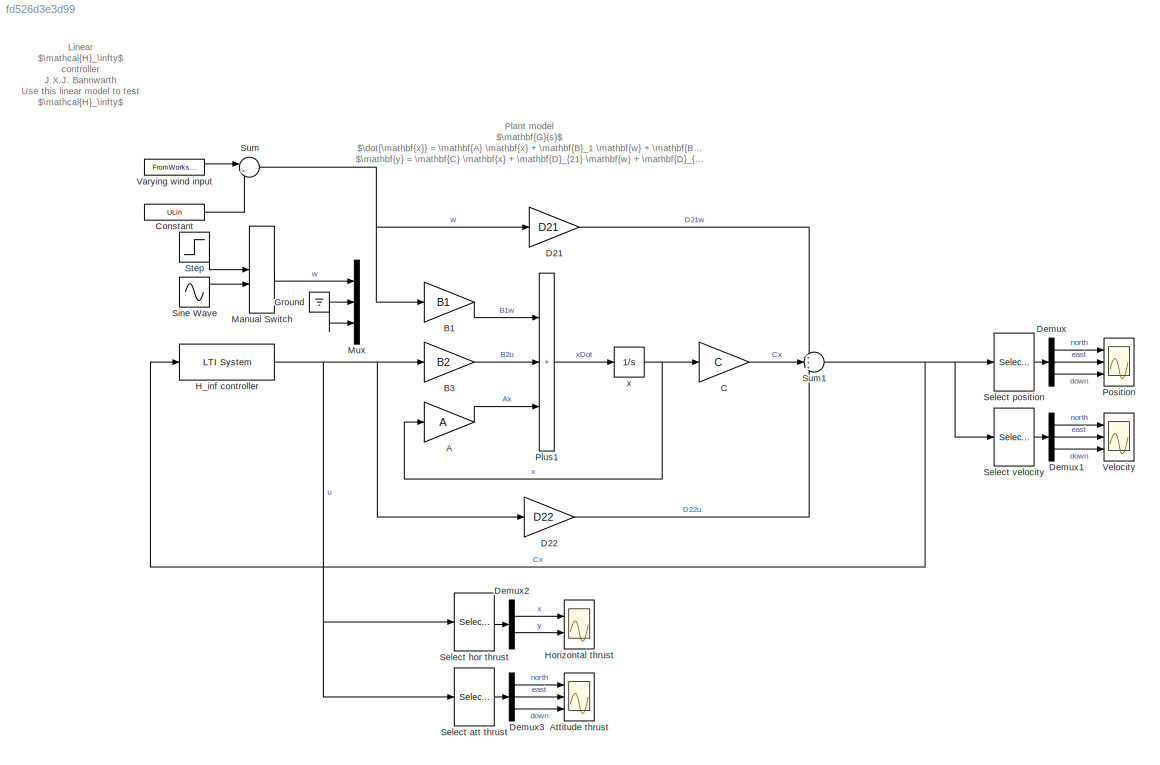
MODEL slx_fd526d3e3d99
KIND model
CONFIG AbsTol = auto
CONFIG EnableMultiTasking = off
CONFIG FixedStep = auto
CONFIG MaxStep = auto
CONFIG MinStep = auto
CONFIG RelTol = 1e-3
CONFIG SampleTimeConstraint = Unconstrained
CONFIG SolverName = VariableStepAuto
CONFIG StartTime = 0.0
CONFIG StopTime = 100
BLOCK [Gain] A
  Gain = A
  Multiplication = Matrix(K*u)
BLOCK [Scope] Attitude thrust
  Floating = off
  NumInputPorts = 3
  Ports = [3]
  ScopeSpecificationString = Simulink.scopes.TimeScopeBlockCfg('CurrentConfiguration', extmgr.ConfigurationSet(extmgr.Configuration('Core','General UI',true),extmgr.Configuration('Core','Source UI',true),extmgr.Configuration('Sources','WiredSimulink',true,'DataLoggingVariableName','ScopeData3'),extmgr.Configuration('Visuals','Time Domain',true,'SerializedDisplays',{struct('MinYLimReal','-0.05446','MaxYLimReal','0.04029','YLab...<+2764ch>
BLOCK [Gain] B1
  Gain = B1
  Multiplication = Matrix(K*u)
BLOCK [Gain] B3
  Gain = B2
  Multiplication = Matrix(K*u)
BLOCK [Gain] C
  Gain = C
  Multiplication = Matrix(K*u)
BLOCK [Constant] Constant
  Value = ULin
BLOCK [Gain] D21
  Gain = D21
  Multiplication = Matrix(K*u)
BLOCK [Gain] D22
  Gain = D22
  Multiplication = Matrix(K*u)
BLOCK [Demux] Demux
  Outputs = 3
  Ports = [1, 3]
BLOCK [Demux] Demux1
  Outputs = 3
  Ports = [1, 3]
BLOCK [Demux] Demux2
  Outputs = 2
  Ports = [1, 2]
BLOCK [Demux] Demux3
  Outputs = 3
  Ports = [1, 3]
BLOCK [Ground] Ground
BLOCK [Reference] H_inf controller  REF=cstblocks/LTI System
  Ports = [1, 1]
  SourceBlock = cstblocks/LTI System
  SourceProductBaseCode = CT
  SourceType = LTI Block
BLOCK [Scope] Horizontal thrust
  Floating = off
  NumInputPorts = 2
  Ports = [2]
  ScopeSpecificationString = Simulink.scopes.TimeScopeBlockCfg('CurrentConfiguration', extmgr.ConfigurationSet(extmgr.Configuration('Core','General UI',true),extmgr.Configuration('Core','Source UI',true),extmgr.Configuration('Sources','WiredSimulink',true,'DataLoggingVariableName','ScopeData2'),extmgr.Configuration('Visuals','Time Domain',true,'SerializedDisplays',{struct('MinYLimReal','-0.38712','MaxYLimReal','0.34087','YLab...<+2005ch>
BLOCK [ManualSwitch] Manual Switch
BLOCK [Mux] Mux
  DisplayOption = bar
  Inputs = 3
  Ports = [3, 1]
BLOCK [Sum] Plus1
  IconShape = rectangular
  Inputs = +++
  Ports = [3, 1]
BLOCK [Scope] Position
  Floating = off
  NumInputPorts = 3
  Ports = [3]
  ScopeSpecificationString = Simulink.scopes.TimeScopeBlockCfg('CurrentConfiguration', extmgr.ConfigurationSet(extmgr.Configuration('Core','General UI',true),extmgr.Configuration('Core','Source UI',true),extmgr.Configuration('Sources','WiredSimulink',true),extmgr.Configuration('Visuals','Time Domain',true,'SerializedDisplays',{struct('MinYLimReal','-0.07369','MaxYLimReal','0.06802','YLabelReal','','MinYLimMag','0.00000','MaxY...<+2753ch>
BLOCK [Selector] Select att thrust
  IndexOptions = Index vector (dialog)
  Indices = [1:3]
  InputPortWidth = size(K.D, 1)
  OutputSizes = 1
  Ports = [1, 1]
BLOCK [Selector] Select hor thrust
  IndexOptions = Index vector (dialog)
  Indices = [4:5]
  InputPortWidth = size(K.D, 1)
  OutputSizes = 1
  Ports = [1, 1]
BLOCK [Selector] Select position
  IndexOptions = Index vector (dialog)
  Indices = [4:6]
  InputPortWidth = size(C, 1)
  OutputSizes = 1
  Ports = [1, 1]
BLOCK [Selector] Select velocity
  IndexOptions = Index vector (dialog)
  Indices = [7:9]
  InputPortWidth = size(C, 1)
  OutputSizes = 1
  Ports = [1, 1]
BLOCK [Sin] Sine Wave
  Frequency = 0.5
  Ports = [0, 1]
  SampleTime = 0
BLOCK [Step] Step
  After = 5
  SampleTime = 0
BLOCK [Sum] Sum
  Inputs = |+-
  Ports = [2, 1]
BLOCK [Sum] Sum1
  Inputs = +++
  Ports = [3, 1]
BLOCK [FromWorkspace] Varying wind input
  VariableName = windInput
BLOCK [Scope] Velocity
  Floating = off
  NumInputPorts = 3
  Ports = [3]
  ScopeSpecificationString = Simulink.scopes.TimeScopeBlockCfg('CurrentConfiguration', extmgr.ConfigurationSet(extmgr.Configuration('Core','General UI',true),extmgr.Configuration('Core','Source UI',true),extmgr.Configuration('Sources','WiredSimulink',true,'DataLoggingVariableName','ScopeData1'),extmgr.Configuration('Visuals','Time Domain',true,'SerializedDisplays',{struct('MinYLimReal','-0.16691','MaxYLimReal','0.17844','YLab...<+2763ch>
BLOCK [Integrator] x
  ContinuousStateAttributes = G.StateName
  Ports = [1, 1]
ANNOTATION (root): Plant model $\mathbf{G}(s)$ $\dot{\mathbf{x}} = \mathbf{A} \mathbf{x} + \mathbf{B}_1 \mathbf{w} + \mathbf{B}_2 \mathbf{u}$ $\mathbf{y} = \mathbf{C} \mathbf{x} + \mathbf{D}_{21} \mathbf{w} + \mathbf{D}_{22} \mathbf{u}$
ANNOTATION (root): Linear $\mathcal{H}_\infty$ controller J.X.J. Bannwarth Use this linear model to test $\mathcal{H}_\infty$ control performance.
LINE A:1 -> Plus1:3
LINE B1:1 -> Plus1:1
LINE B3:1 -> Plus1:2
LINE C:1 -> Sum1:2
LINE Constant:1 -> Sum:2
LINE D21:1 -> Sum1:1
LINE D22:1 -> Sum1:3
LINE Demux1:1 -> Velocity:1
LINE Demux1:2 -> Velocity:2
LINE Demux1:3 -> Velocity:3
LINE Demux2:1 -> Horizontal thrust:1
LINE Demux2:2 -> Horizontal thrust:2
LINE Demux3:1 -> Attitude thrust:1
LINE Demux3:2 -> Attitude thrust:2
LINE Demux3:3 -> Attitude thrust:3
LINE Demux:1 -> Position:1
LINE Demux:2 -> Position:2
LINE Demux:3 -> Position:3
NET Ground:1 -> Mux:2, Mux:3
NET H_inf controller:1 -> B3:1, D22:1, Select att thrust:1, Select hor thrust:1
LINE Manual Switch:1 -> Mux:1
LINE Plus1:1 -> x:1
LINE Select att thrust:1 -> Demux3:1
LINE Select hor thrust:1 -> Demux2:1
LINE Select position:1 -> Demux:1
LINE Select velocity:1 -> Demux1:1
LINE Sine Wave:1 -> Manual Switch:2
LINE Step:1 -> Manual Switch:1
NET Sum1:1 -> H_inf controller:1, Select position:1, Select velocity:1
NET Sum:1 -> B1:1, D21:1
LINE Varying wind input:1 -> Sum:1
NET x:1 -> A:1, C:1
note: NET lines group one-source signal fan-out (src -> all destinations, sorted); 1:1 wires keep LINE
